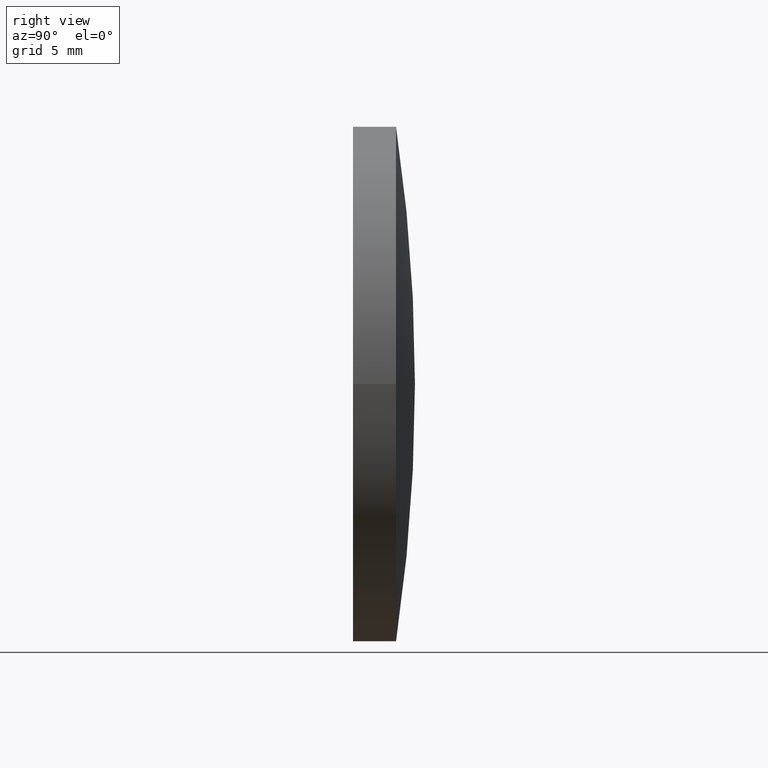
[diagram: clean part render]
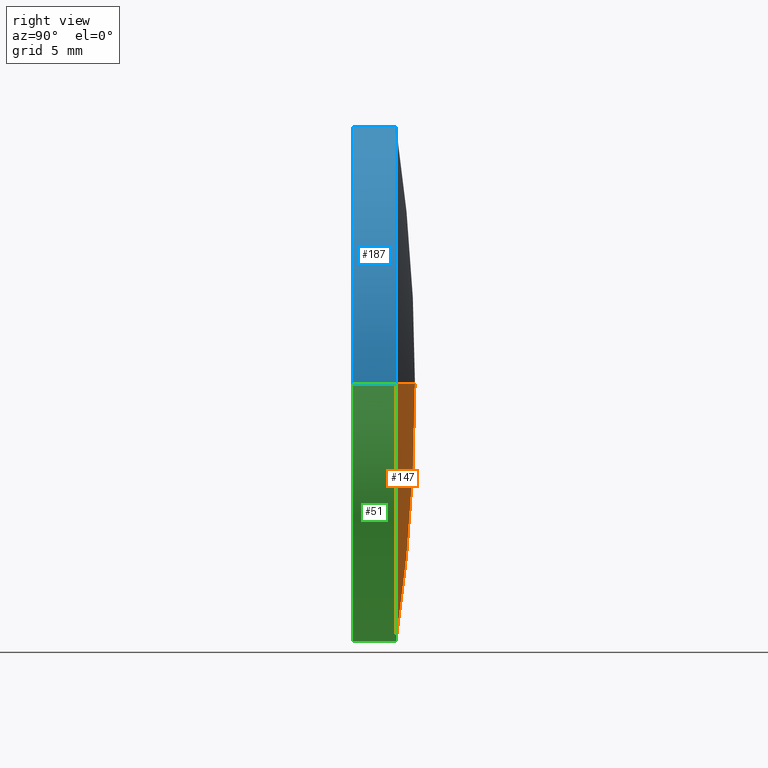
[diagram: same view with three faces highlighted in distinct colors, each labeled with its STEP entity id]
A machine part, right view with three faces highlighted in distinct colors.
Their STEP definitions:

[orange] entity #147 — the highlighted toroidal blend (fillet) surface has major radius 0.0335 mm and minor (blend) radius 103.28 mm.
#3 = AXIS2_PLACEMENT_3D ( 'NONE', #77, #137, #124 ) ;
#11 = VERTEX_POINT ( 'NONE', #74 ) ;
#17 = FACE_OUTER_BOUND ( 'NONE', #119, .T. ) ;
#33 = DIRECTION ( 'NONE',  ( 2.570034290968628392E-16, 1.000000000000000000, -0.000000000000000000 ) ) ;
#36 = CIRCLE ( 'NONE', #3, 103.2800000000000296 ) ;
#56 = ORIENTED_EDGE ( 'NONE', *, *, #58, .T. ) ;
#58 = EDGE_CURVE ( 'NONE', #59, #11, #62, .T. ) ;
#59 = VERTEX_POINT ( 'NONE', #154 ) ;
#62 = CIRCLE ( 'NONE', #138, 103.2800000000000296 ) ;
#73 = AXIS2_PLACEMENT_3D ( 'NONE', #142, #33, #81 ) ;
#74 = CARTESIAN_POINT ( 'NONE',  ( 9.252123447487062605E-16, 3.600000000000000089, 0.000000000000000000 ) ) ;
#77 = CARTESIAN_POINT ( 'NONE',  ( -0.03353293412623493258, -99.67999455626598149, -4.106600044368128236E-18 ) ) ;
#80 = CARTESIAN_POINT ( 'NONE',  ( -2.561427632497004225E-14, -99.67999455626598149, 0.000000000000000000 ) ) ;
#81 = DIRECTION ( 'NONE',  ( -1.000000000000000000, 2.602085213965210149E-16, 0.000000000000000000 ) ) ;
#89 = AXIS2_PLACEMENT_3D ( 'NONE', #80, #98, #188 ) ;
#90 = DIRECTION ( 'NONE',  ( -1.000000000000000000, 0.000000000000000000, 0.000000000000000000 ) ) ;
#91 = TOROIDAL_SURFACE ( 'NONE', #89, -0.03353293412620931419, 103.2800000000000296 ) ;
#93 = VERTEX_POINT ( 'NONE', #136 ) ;
#98 = DIRECTION ( 'NONE',  ( 2.570034290968628392E-16, 1.000000000000000000, -0.000000000000000000 ) ) ;
#104 = EDGE_CURVE ( 'NONE', #93, #11, #36, .T. ) ;
#117 = ORIENTED_EDGE ( 'NONE', *, *, #104, .F. ) ;
#119 = EDGE_LOOP ( 'NONE', ( #117, #164, #56 ) ) ;
#123 = CIRCLE ( 'NONE', #73, 15.00000000000000178 ) ;
#124 = DIRECTION ( 'NONE',  ( 1.000000000000000000, 0.000000000000000000, 1.224646799147353207E-16 ) ) ;
#125 = DIRECTION ( 'NONE',  ( -0.000000000000000000, 0.000000000000000000, -1.000000000000000000 ) ) ;
#136 = CARTESIAN_POINT ( 'NONE',  ( 15.00000000000007638, 2.499999999999989786, 1.836970198721038661E-15 ) ) ;
#137 = DIRECTION ( 'NONE',  ( -1.224646799147353207E-16, 3.147384268133668167E-32, 1.000000000000000000 ) ) ;
#138 = AXIS2_PLACEMENT_3D ( 'NONE', #199, #125, #90 ) ;
#142 = CARTESIAN_POINT ( 'NONE',  ( 6.425085727421557667E-16, 2.499999999999994671, 0.000000000000000000 ) ) ;
#147 = ADVANCED_FACE ( 'NONE', ( #17 ), #91, .T. ) ;
#154 = CARTESIAN_POINT ( 'NONE',  ( -15.00000000000007638, 2.499999999999993339, 0.000000000000000000 ) ) ;
#164 = ORIENTED_EDGE ( 'NONE', *, *, #181, .T. ) ;
#181 = EDGE_CURVE ( 'NONE', #93, #59, #123, .T. ) ;
#188 = DIRECTION ( 'NONE',  ( -1.000000000000000000, 2.570034290968628392E-16, 0.000000000000000000 ) ) ;
#199 = CARTESIAN_POINT ( 'NONE',  ( 0.03353293412618370273, -99.67999455626598149, 0.000000000000000000 ) ) ;

[blue] entity #187 — the highlighted cylindrical surface (partial cylindrical patch) has radius 15 mm, axis along (0, 1, -0).
#8 = ORIENTED_EDGE ( 'NONE', *, *, #160, .T. ) ;
#9 = VECTOR ( 'NONE', #106, 1000.000000000000000 ) ;
#14 = DIRECTION ( 'NONE',  ( -1.000000000000000000, 2.602085213965210149E-16, 0.000000000000000000 ) ) ;
#24 = EDGE_LOOP ( 'NONE', ( #26, #8, #183, #180 ) ) ;
#26 = ORIENTED_EDGE ( 'NONE', *, *, #122, .T. ) ;
#28 = EDGE_CURVE ( 'NONE', #59, #93, #200, .T. ) ;
#29 = VERTEX_POINT ( 'NONE', #156 ) ;
#45 = DIRECTION ( 'NONE',  ( 2.570034290968628392E-16, 1.000000000000000000, -0.000000000000000000 ) ) ;
#48 = DIRECTION ( 'NONE',  ( -1.000000000000000000, 2.602085213965210642E-16, 0.000000000000000000 ) ) ;
#50 = CARTESIAN_POINT ( 'NONE',  ( 9.252123447487062605E-16, 3.600000000000000089, 0.000000000000000000 ) ) ;
#59 = VERTEX_POINT ( 'NONE', #154 ) ;
#66 = CARTESIAN_POINT ( 'NONE',  ( 15.00000000000000178, 3.599999999999996092, 1.836970198721029589E-15 ) ) ;
#67 = EDGE_CURVE ( 'NONE', #29, #59, #198, .T. ) ;
#75 = CARTESIAN_POINT ( 'NONE',  ( 6.425085727421557667E-16, 2.499999999999994671, 0.000000000000000000 ) ) ;
#78 = DIRECTION ( 'NONE',  ( 2.570034290968628392E-16, 1.000000000000000000, -0.000000000000000000 ) ) ;
#93 = VERTEX_POINT ( 'NONE', #136 ) ;
#106 = DIRECTION ( 'NONE',  ( 2.570034290968628392E-16, 1.000000000000000000, -0.000000000000000000 ) ) ;
#107 = VECTOR ( 'NONE', #112, 1000.000000000000000 ) ;
#112 = DIRECTION ( 'NONE',  ( 2.570034290968628392E-16, 1.000000000000000000, -0.000000000000000000 ) ) ;
#121 = CARTESIAN_POINT ( 'NONE',  ( -14.99999999999999822, 3.600000000000003642, 0.000000000000000000 ) ) ;
#122 = EDGE_CURVE ( 'NONE', #29, #139, #152, .T. ) ;
#126 = DIRECTION ( 'NONE',  ( 2.570034290968628392E-16, 1.000000000000000000, -0.000000000000000000 ) ) ;
#127 = DIRECTION ( 'NONE',  ( -1.000000000000000000, 2.570034290968628392E-16, 0.000000000000000000 ) ) ;
#136 = CARTESIAN_POINT ( 'NONE',  ( 15.00000000000007638, 2.499999999999989786, 1.836970198721038661E-15 ) ) ;
#139 = VERTEX_POINT ( 'NONE', #173 ) ;
#144 = AXIS2_PLACEMENT_3D ( 'NONE', #50, #126, #48 ) ;
#145 = CYLINDRICAL_SURFACE ( 'NONE', #144, 15.00000000000000000 ) ;
#151 = AXIS2_PLACEMENT_3D ( 'NONE', #75, #45, #14 ) ;
#152 = CIRCLE ( 'NONE', #176, 15.00000000000000000 ) ;
#154 = CARTESIAN_POINT ( 'NONE',  ( -15.00000000000007638, 2.499999999999993339, 0.000000000000000000 ) ) ;
#156 = CARTESIAN_POINT ( 'NONE',  ( -15.00000000000000000, -4.807638449487346729E-17, 0.000000000000000000 ) ) ;
#158 = FACE_OUTER_BOUND ( 'NONE', #24, .T. ) ;
#160 = EDGE_CURVE ( 'NONE', #139, #93, #190, .T. ) ;
#173 = CARTESIAN_POINT ( 'NONE',  ( 15.00000000000000000, -7.758179257400758057E-15, 1.836970198721029589E-15 ) ) ;
#176 = AXIS2_PLACEMENT_3D ( 'NONE', #185, #78, #127 ) ;
#180 = ORIENTED_EDGE ( 'NONE', *, *, #67, .F. ) ;
#183 = ORIENTED_EDGE ( 'NONE', *, *, #28, .F. ) ;
#185 = CARTESIAN_POINT ( 'NONE',  ( -9.629649721936179265E-31, -3.903127820947815962E-15, 0.000000000000000000 ) ) ;
#187 = ADVANCED_FACE ( 'NONE', ( #158 ), #145, .T. ) ;
#190 = LINE ( 'NONE', #66, #107 ) ;
#198 = LINE ( 'NONE', #121, #9 ) ;
#200 = CIRCLE ( 'NONE', #151, 15.00000000000000178 ) ;

[green] entity #51 — the highlighted cylindrical surface (partial cylindrical patch) has radius 15 mm, axis along (0, 1, -0).
#1 = CARTESIAN_POINT ( 'NONE',  ( 9.252123447487062605E-16, 3.600000000000000089, 0.000000000000000000 ) ) ;
#9 = VECTOR ( 'NONE', #106, 1000.000000000000000 ) ;
#15 = DIRECTION ( 'NONE',  ( -1.000000000000000000, 2.570034290968628392E-16, 0.000000000000000000 ) ) ;
#19 = AXIS2_PLACEMENT_3D ( 'NONE', #46, #99, #15 ) ;
#29 = VERTEX_POINT ( 'NONE', #156 ) ;
#30 = ORIENTED_EDGE ( 'NONE', *, *, #160, .F. ) ;
#33 = DIRECTION ( 'NONE',  ( 2.570034290968628392E-16, 1.000000000000000000, -0.000000000000000000 ) ) ;
#46 = CARTESIAN_POINT ( 'NONE',  ( -9.629649721936179265E-31, -3.903127820947815962E-15, 0.000000000000000000 ) ) ;
#51 = ADVANCED_FACE ( 'NONE', ( #182 ), #135, .T. ) ;
#59 = VERTEX_POINT ( 'NONE', #154 ) ;
#66 = CARTESIAN_POINT ( 'NONE',  ( 15.00000000000000178, 3.599999999999996092, 1.836970198721029589E-15 ) ) ;
#67 = EDGE_CURVE ( 'NONE', #29, #59, #198, .T. ) ;
#72 = EDGE_LOOP ( 'NONE', ( #30, #109, #96, #170 ) ) ;
#73 = AXIS2_PLACEMENT_3D ( 'NONE', #142, #33, #81 ) ;
#81 = DIRECTION ( 'NONE',  ( -1.000000000000000000, 2.602085213965210149E-16, 0.000000000000000000 ) ) ;
#93 = VERTEX_POINT ( 'NONE', #136 ) ;
#96 = ORIENTED_EDGE ( 'NONE', *, *, #67, .T. ) ;
#99 = DIRECTION ( 'NONE',  ( 2.570034290968628392E-16, 1.000000000000000000, -0.000000000000000000 ) ) ;
#106 = DIRECTION ( 'NONE',  ( 2.570034290968628392E-16, 1.000000000000000000, -0.000000000000000000 ) ) ;
#107 = VECTOR ( 'NONE', #112, 1000.000000000000000 ) ;
#109 = ORIENTED_EDGE ( 'NONE', *, *, #197, .T. ) ;
#112 = DIRECTION ( 'NONE',  ( 2.570034290968628392E-16, 1.000000000000000000, -0.000000000000000000 ) ) ;
#121 = CARTESIAN_POINT ( 'NONE',  ( -14.99999999999999822, 3.600000000000003642, 0.000000000000000000 ) ) ;
#123 = CIRCLE ( 'NONE', #73, 15.00000000000000178 ) ;
#133 = CIRCLE ( 'NONE', #19, 15.00000000000000000 ) ;
#135 = CYLINDRICAL_SURFACE ( 'NONE', #175, 15.00000000000000000 ) ;
#136 = CARTESIAN_POINT ( 'NONE',  ( 15.00000000000007638, 2.499999999999989786, 1.836970198721038661E-15 ) ) ;
#139 = VERTEX_POINT ( 'NONE', #173 ) ;
#142 = CARTESIAN_POINT ( 'NONE',  ( 6.425085727421557667E-16, 2.499999999999994671, 0.000000000000000000 ) ) ;
#154 = CARTESIAN_POINT ( 'NONE',  ( -15.00000000000007638, 2.499999999999993339, 0.000000000000000000 ) ) ;
#156 = CARTESIAN_POINT ( 'NONE',  ( -15.00000000000000000, -4.807638449487346729E-17, 0.000000000000000000 ) ) ;
#157 = DIRECTION ( 'NONE',  ( 2.570034290968628392E-16, 1.000000000000000000, -0.000000000000000000 ) ) ;
#160 = EDGE_CURVE ( 'NONE', #139, #93, #190, .T. ) ;
#168 = DIRECTION ( 'NONE',  ( -1.000000000000000000, 2.602085213965210642E-16, 0.000000000000000000 ) ) ;
#170 = ORIENTED_EDGE ( 'NONE', *, *, #181, .F. ) ;
#173 = CARTESIAN_POINT ( 'NONE',  ( 15.00000000000000000, -7.758179257400758057E-15, 1.836970198721029589E-15 ) ) ;
#175 = AXIS2_PLACEMENT_3D ( 'NONE', #1, #157, #168 ) ;
#181 = EDGE_CURVE ( 'NONE', #93, #59, #123, .T. ) ;
#182 = FACE_OUTER_BOUND ( 'NONE', #72, .T. ) ;
#190 = LINE ( 'NONE', #66, #107 ) ;
#197 = EDGE_CURVE ( 'NONE', #139, #29, #133, .T. ) ;
#198 = LINE ( 'NONE', #121, #9 ) ;